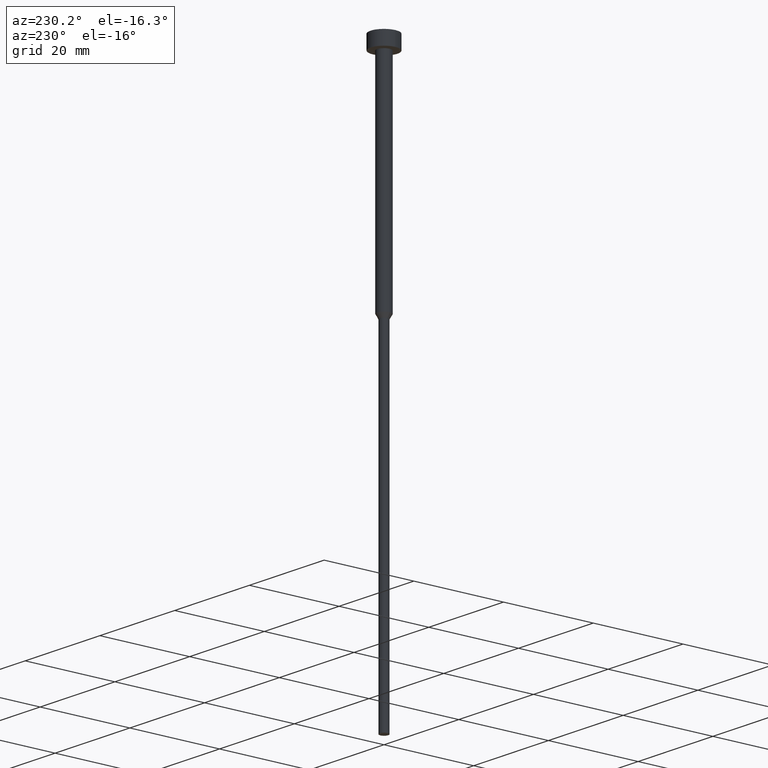
[diagram: clean part render]
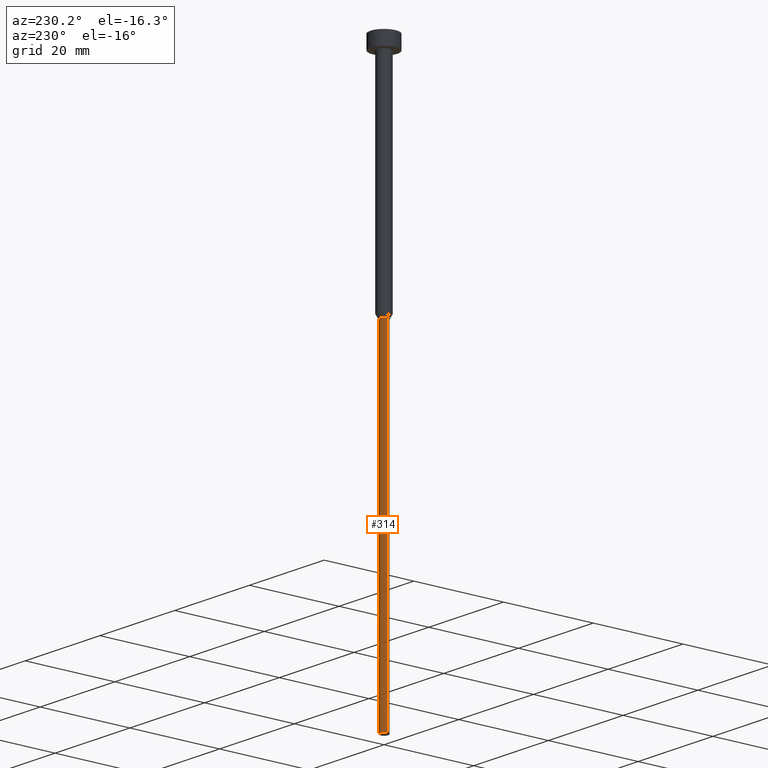
[diagram: same view with one face highlighted and labeled with its STEP entity id]
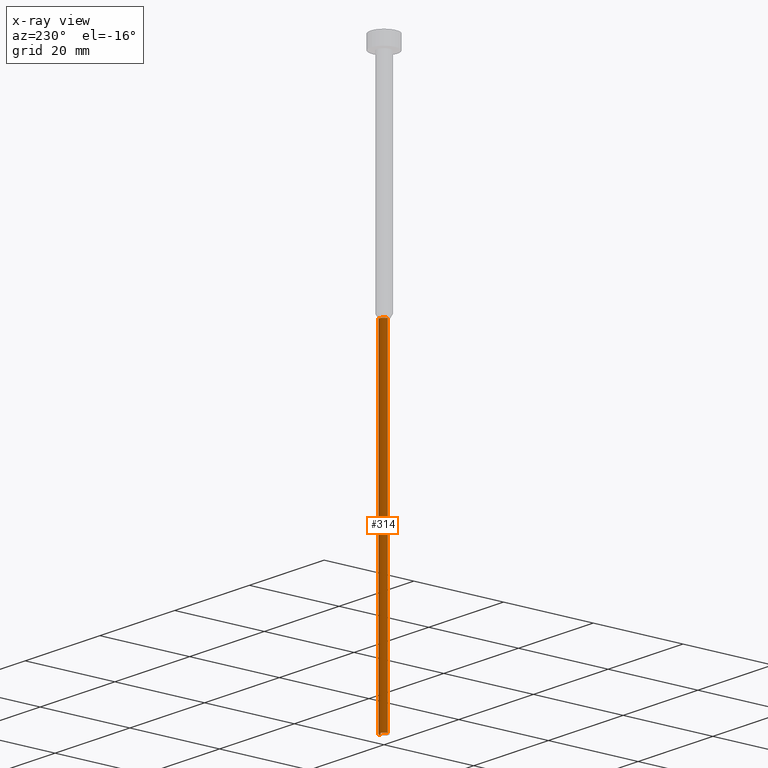
[diagram: x-ray of the same camera — body ghosted, the highlighted face saturated]
A machine part, auxiliary view. The second image highlights one B-rep face of the part: STEP entity #314.
The next image is the same camera in x-ray: the body ghosted, the highlighted face saturated — about 0% of this face is hidden behind the body in this view.
In plain terms, the highlighted cylindrical surface (edge-blend (fillet) strip) has radius 0.95 mm, axis along (-0, -0, 1).
Its self-contained STEP definition (entity closure, byte-faithful):
#10 = VERTEX_POINT ( 'NONE', #78 ) ;
#19 = EDGE_CURVE ( 'NONE', #193, #343, #46, .T. ) ;
#23 = DIRECTION ( 'NONE',  ( -0.000000000000000000, -0.000000000000000000, 1.000000000000000000 ) ) ;
#41 = ORIENTED_EDGE ( 'NONE', *, *, #19, .F. ) ;
#46 = LINE ( 'NONE', #349, #216 ) ;
#52 = CARTESIAN_POINT ( 'NONE',  ( 0.000000000000000000, 0.000000000000000000, -50.95262794416287733 ) ) ;
#53 = AXIS2_PLACEMENT_3D ( 'NONE', #282, #67, #189 ) ;
#67 = DIRECTION ( 'NONE',  ( -0.000000000000000000, -0.000000000000000000, 1.000000000000000000 ) ) ;
#70 = ORIENTED_EDGE ( 'NONE', *, *, #149, .T. ) ;
#78 = CARTESIAN_POINT ( 'NONE',  ( -0.9499999999999998446, 1.163414459189985682E-16, -125.0000000000000000 ) ) ;
#84 = CIRCLE ( 'NONE', #91, 0.9499999999999998446 ) ;
#89 = LINE ( 'NONE', #305, #220 ) ;
#91 = AXIS2_PLACEMENT_3D ( 'NONE', #231, #23, #234 ) ;
#103 = EDGE_CURVE ( 'NONE', #343, #188, #214, .T. ) ;
#108 = EDGE_CURVE ( 'NONE', #193, #10, #84, .T. ) ;
#123 = CARTESIAN_POINT ( 'NONE',  ( 0.9500000000000000666, 0.000000000000000000, -50.95262794416287733 ) ) ;
#128 = ORIENTED_EDGE ( 'NONE', *, *, #103, .F. ) ;
#149 = EDGE_CURVE ( 'NONE', #10, #188, #89, .T. ) ;
#151 = CARTESIAN_POINT ( 'NONE',  ( 0.9499999999999998446, 0.000000000000000000, -125.0000000000000000 ) ) ;
#175 = DIRECTION ( 'NONE',  ( 1.000000000000000000, 0.000000000000000000, 0.000000000000000000 ) ) ;
#179 = DIRECTION ( 'NONE',  ( -0.000000000000000000, -0.000000000000000000, 1.000000000000000000 ) ) ;
#181 = FACE_OUTER_BOUND ( 'NONE', #291, .T. ) ;
#188 = VERTEX_POINT ( 'NONE', #328 ) ;
#189 = DIRECTION ( 'NONE',  ( 1.000000000000000000, 0.000000000000000000, 0.000000000000000000 ) ) ;
#193 = VERTEX_POINT ( 'NONE', #151 ) ;
#212 = ORIENTED_EDGE ( 'NONE', *, *, #108, .T. ) ;
#214 = CIRCLE ( 'NONE', #267, 0.9500000000000000666 ) ;
#216 = VECTOR ( 'NONE', #290, 1000.000000000000000 ) ;
#220 = VECTOR ( 'NONE', #179, 1000.000000000000000 ) ;
#231 = CARTESIAN_POINT ( 'NONE',  ( 0.000000000000000000, 0.000000000000000000, -125.0000000000000000 ) ) ;
#234 = DIRECTION ( 'NONE',  ( 1.000000000000000000, 0.000000000000000000, 0.000000000000000000 ) ) ;
#267 = AXIS2_PLACEMENT_3D ( 'NONE', #52, #272, #175 ) ;
#272 = DIRECTION ( 'NONE',  ( -0.000000000000000000, -0.000000000000000000, 1.000000000000000000 ) ) ;
#278 = CYLINDRICAL_SURFACE ( 'NONE', #53, 0.9499999999999999556 ) ;
#282 = CARTESIAN_POINT ( 'NONE',  ( 0.000000000000000000, 0.000000000000000000, 0.000000000000000000 ) ) ;
#290 = DIRECTION ( 'NONE',  ( -0.000000000000000000, -0.000000000000000000, 1.000000000000000000 ) ) ;
#291 = EDGE_LOOP ( 'NONE', ( #212, #70, #128, #41 ) ) ;
#305 = CARTESIAN_POINT ( 'NONE',  ( -0.9499999999999999556, 1.163414459189985682E-16, 0.000000000000000000 ) ) ;
#314 = ADVANCED_FACE ( 'NONE', ( #181 ), #278, .T. ) ;
#328 = CARTESIAN_POINT ( 'NONE',  ( -0.9500000000000001776, 1.163414459189985929E-16, -50.95262794416287733 ) ) ;
#343 = VERTEX_POINT ( 'NONE', #123 ) ;
#349 = CARTESIAN_POINT ( 'NONE',  ( 0.9499999999999999556, 0.000000000000000000, 0.000000000000000000 ) ) ;